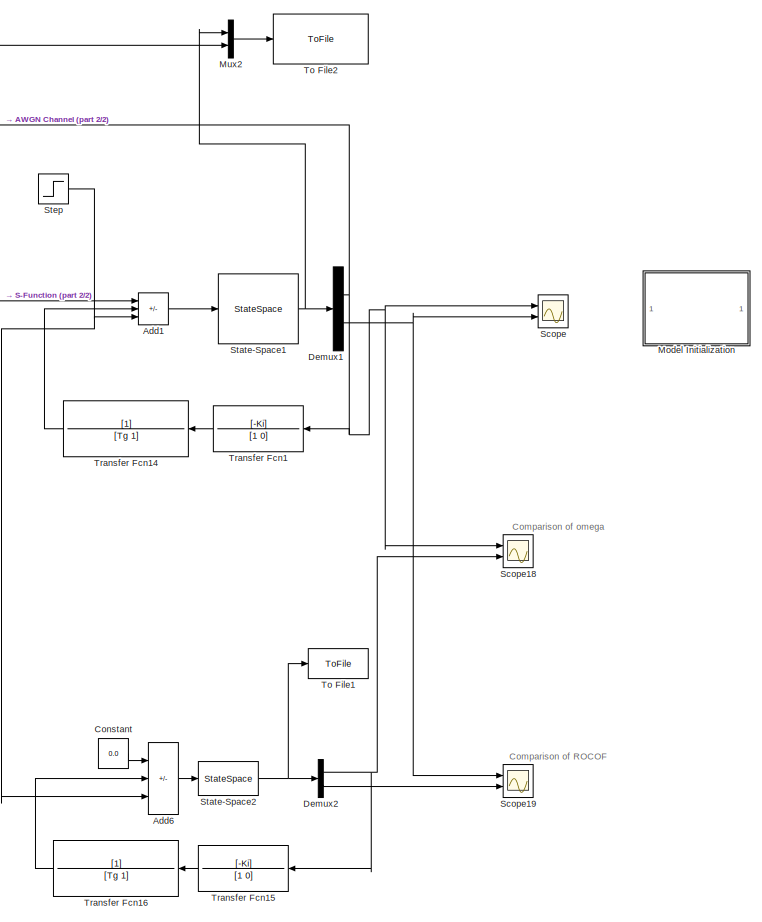
[diagram: root canvas - part 1/2, right side, full height]
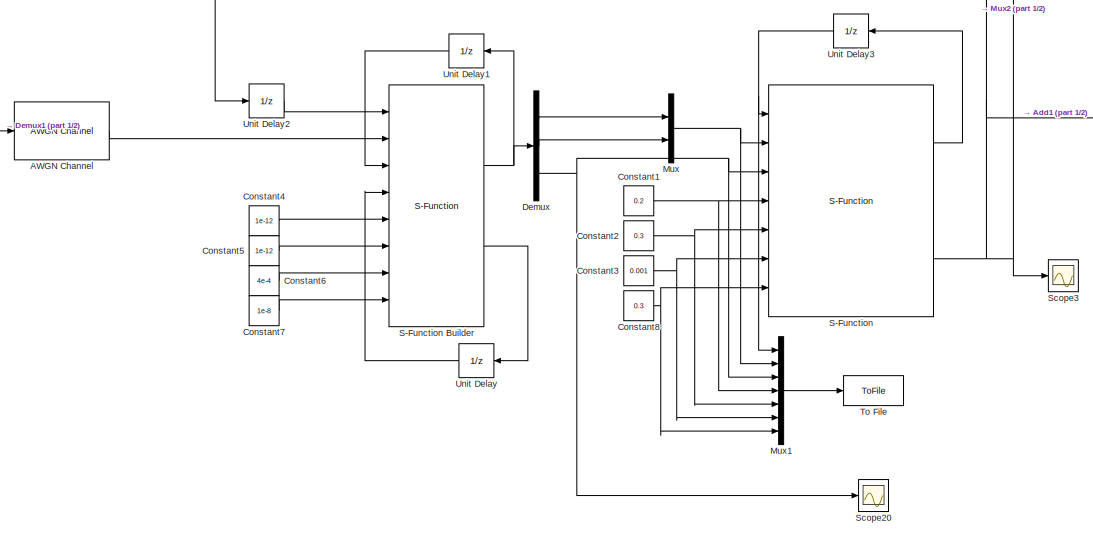
[diagram: root canvas - part 2/2, middle left region]
MODEL slx_940b55816fd9
KIND model
CONFIG AbsTol = auto
CONFIG EnableMultiTasking = off
CONFIG FixedStep = 0.02
CONFIG InitFcn = M = 4; D = 1.5/100; Rp = 0.05; Tg = 0.2; Ki = 1.8;
CONFIG MaxStep = 1e-3
CONFIG MinStep = auto
CONFIG RelTol = 1e-3
CONFIG SampleTimeConstraint = Unconstrained
CONFIG SolverName = VariableStepAuto
CONFIG StartTime = 0.0
CONFIG StopTime = 50
BLOCK [Reference] AWGN Channel  REF=commchan3/AWGN
Channel
  Ports = [1, 1]
  SourceBlock = commchan3/AWGN\nChannel
  SourceProductBaseCode = CM
  SourceType = AWGN Channel
  UserDataPersistent = on
BLOCK [Sum] Add1
  IconShape = rectangular
  Inputs = ++-
  Ports = [3, 1]
BLOCK [Sum] Add6
  IconShape = rectangular
  Inputs = ++-
  Ports = [3, 1]
BLOCK [Constant] Constant
  Value = 0.0
BLOCK [Constant] Constant1
  Value = 0.2
BLOCK [Constant] Constant2
  Value = 0.3
BLOCK [Constant] Constant3
  Value = 0.001
BLOCK [Constant] Constant4
  Value = 1e-12
BLOCK [Constant] Constant5
  Value = 1e-12
BLOCK [Constant] Constant6
  Value = 4e-4
BLOCK [Constant] Constant7
  Value = 1e-8
BLOCK [Constant] Constant8
  Value = 0.3
BLOCK [Demux] Demux
  Outputs = 3
  Ports = [1, 3]
BLOCK [Demux] Demux1
  Outputs = 2
  Ports = [1, 2]
BLOCK [Demux] Demux2
  Outputs = 2
  Ports = [1, 2]
BLOCK [SubSystem] Model Initialization
  CopyFcn = set_param(gcb,'LinkStatus','inactive')
  Ports = []
  RequestExecContextInheritance = off
BLOCK [Mux] Mux
  DisplayOption = bar
  Inputs = 2
  Ports = [2, 1]
BLOCK [Mux] Mux1
  DisplayOption = bar
  Inputs = 7
  Ports = [7, 1]
BLOCK [Mux] Mux2
  DisplayOption = bar
  Inputs = 2
  Ports = [2, 1]
BLOCK [S-Function] S-Function
  EnableBusSupport = off
  FunctionName = MPC_simplified_qpoases_sfun
  Ports = [7, 3]
  SFcnIsStateOwnerBlock = off
  SFunctionDeploymentMode = off
BLOCK [S-Function] S-Function Builder
  CopyFcn = set_param(gcbh,'LinkStatus','none')
  EnableBusSupport = off
  FunctionName = KF_Sfun
  InitFcn = try, set_param(gcb,'FunctionName','KF_Sfun'), end
  OpenFcn = sfunctionwizard(gcbh)
  Ports = [8, 2]
  PreSaveFcn = try, set_param(gcb,'FunctionName','KF_Sfun'), end
  SFcnIsStateOwnerBlock = off
  SFunctionDeploymentMode = off
  SFunctionModules = KF_Sfun_wrapper EKF_Func EKF_Func_Call
BLOCK [Scope] Scope
  Floating = off
  NumInputPorts = 2
  Ports = [2]
  ScopeSpecificationString = Simulink.scopes.TimeScopeBlockCfg('CurrentConfiguration', extmgr.ConfigurationSet(extmgr.Configuration('Core','General UI',true),extmgr.Configuration('Core','Source UI',true),extmgr.Configuration('Sources','WiredSimulink',true,'DataLoggingVariableName','ScopeData2'),extmgr.Configuration('Visuals','Time Domain',true,'SerializedDisplays',{struct('MinYLimReal','-0.07297','MaxYLimReal','0.00984','YLab...<+1730ch>
BLOCK [Scope] Scope18
  Floating = off
  NumInputPorts = 2
  Ports = [2]
  ScopeSpecificationString = Simulink.scopes.TimeScopeBlockCfg('CurrentConfiguration', extmgr.ConfigurationSet(extmgr.Configuration('Core','General UI',true),extmgr.Configuration('Core','Source UI',true),extmgr.Configuration('Sources','WiredSimulink',true,'DataLoggingVariableName','ScopeData12'),extmgr.Configuration('Visuals','Time Domain',true,'SerializedDisplays',{struct('MinYLimReal','-0.04864','MaxYLimReal','0.00541','YLa...<+1715ch>
BLOCK [Scope] Scope19
  Floating = off
  NumInputPorts = 2
  Ports = [2]
  ScopeSpecificationString = Simulink.scopes.TimeScopeBlockCfg('CurrentConfiguration', extmgr.ConfigurationSet(extmgr.Configuration('Core','General UI',true),extmgr.Configuration('Core','Source UI',true),extmgr.Configuration('Sources','WiredSimulink',true,'DataLoggingVariableName','ScopeData13'),extmgr.Configuration('Visuals','Time Domain',true,'SerializedDisplays',{struct('MinYLimReal','-0.11763','MaxYLimReal','0.03534','YLa...<+1714ch>
BLOCK [Scope] Scope20
  Floating = off
  NumInputPorts = 1
  Ports = [1]
  ScopeSpecificationString = Simulink.scopes.TimeScopeBlockCfg('CurrentConfiguration', extmgr.ConfigurationSet(extmgr.Configuration('Core','General UI',true),extmgr.Configuration('Core','Source UI',true),extmgr.Configuration('Sources','WiredSimulink',true,'DataLoggingVariableName','ScopeData14'),extmgr.Configuration('Visuals','Time Domain',true,'SerializedDisplays',{struct('MinYLimReal','-0.12326','MaxYLimReal','0.94391','YLa...<+1367ch>
BLOCK [Scope] Scope3
  Floating = off
  NumInputPorts = 1
  Ports = [1]
  ScopeSpecificationString = Simulink.scopes.TimeScopeBlockCfg('CurrentConfiguration', extmgr.ConfigurationSet(extmgr.Configuration('Core','General UI',true),extmgr.Configuration('Core','Source UI',true),extmgr.Configuration('Sources','WiredSimulink',true,'DataLoggingVariableName','ScopeData1'),extmgr.Configuration('Visuals','Time Domain',true,'SerializedDisplays',{struct('MinYLimReal','-0.20425','MaxYLimReal','0.32843','YLab...<+1415ch>
BLOCK [StateSpace] State-Space1
  A = [0 1;-(D/(M*Tg)+1/(Rp*M*Tg)) -(D/M + 1/Tg)]
  B = [0;1/(M*Tg)]
  C = eye(2)
  D = zeros(2,1)
  InitialCondition = 0
  Ports = [1, 1]
BLOCK [StateSpace] State-Space2
  A = [0 1;-(D/(M*Tg)+1/(Rp*M*Tg)) -(D/M + 1/Tg)]
  B = [0;1/(M*Tg)]
  C = eye(2)
  D = zeros(2,1)
  InitialCondition = 0
  Ports = [1, 1]
BLOCK [Step] Step
  After = 0.75
  SampleTime = 0
  Time = 10
BLOCK [ToFile] To File
  Filename = input_data.mat
  Ports = [1]
  SampleTime = 0.02
BLOCK [ToFile] To File1
  Filename = without_control.mat
  MatrixName = datavar
  Ports = [1]
  SampleTime = 0.02
BLOCK [ToFile] To File2
  Filename = pdip_control.mat
  MatrixName = datavar
  Ports = [1]
  SampleTime = 0.02
BLOCK [TransferFcn] Transfer Fcn1
  Denominator = [1 0]
  NameLocation = top
  Numerator = [-Ki]
BLOCK [TransferFcn] Transfer Fcn14
  Denominator = [Tg 1]
  NameLocation = top
BLOCK [TransferFcn] Transfer Fcn15
  Denominator = [1 0]
  NameLocation = top
  Numerator = [-Ki]
BLOCK [TransferFcn] Transfer Fcn16
  Denominator = [Tg 1]
  NameLocation = top
BLOCK [UnitDelay] Unit Delay
  HasFrameUpgradeWarning = on
  InitialCondition = 1*diag([1, 1, 1])
  SampleTime = 0.02
BLOCK [UnitDelay] Unit Delay1
  HasFrameUpgradeWarning = on
  SampleTime = 0.02
BLOCK [UnitDelay] Unit Delay2
  HasFrameUpgradeWarning = on
  SampleTime = 0.02
BLOCK [UnitDelay] Unit Delay3
  HasFrameUpgradeWarning = on
  SampleTime = 0.02
ANNOTATION (root): Comparison of ROCOF
ANNOTATION (root): Comparison of omega
LINE AWGN Channel:1 -> S-Function Builder:2
LINE Add1:1 -> State-Space1:1
LINE Add6:1 -> State-Space2:1
NET Constant1:1 -> Mux1:4, S-Function:4
NET Constant2:1 -> Mux1:5, S-Function:5
NET Constant3:1 -> Mux1:6, S-Function:6
LINE Constant4:1 -> S-Function Builder:5
LINE Constant5:1 -> S-Function Builder:6
LINE Constant6:1 -> S-Function Builder:7
LINE Constant7:1 -> S-Function Builder:8
NET Constant8:1 -> Mux1:7, S-Function:7
LINE Constant:1 -> Add6:1
NET Demux1:1 -> AWGN Channel:1, Scope18:1, Scope:1, Transfer Fcn1:1
NET Demux1:2 -> Scope19:1, Scope:2
NET Demux2:1 -> Scope18:2, Transfer Fcn15:1
LINE Demux2:2 -> Scope19:2
LINE Demux:1 -> Mux:1
LINE Demux:2 -> Mux:2
NET Demux:3 -> Mux1:3, S-Function:3, Scope20:1
LINE Mux1:1 -> To File:1
LINE Mux2:1 -> To File2:1
NET Mux:1 -> Mux1:2, S-Function:2
NET S-Function Builder:1 -> Demux:1, Unit Delay1:1
LINE S-Function Builder:2 -> Unit Delay:1
LINE S-Function:1 -> Unit Delay3:1
NET S-Function:3 -> Add1:1, Mux2:2, Scope3:1, Unit Delay2:1
NET State-Space1:1 -> Demux1:1, Mux2:1
NET State-Space2:1 -> Demux2:1, To File1:1
NET Step:1 -> Add1:3, Add6:3
LINE Transfer Fcn14:1 -> Add1:2
LINE Transfer Fcn15:1 -> Transfer Fcn16:1
LINE Transfer Fcn16:1 -> Add6:2
LINE Transfer Fcn1:1 -> Transfer Fcn14:1
LINE Unit Delay1:1 -> S-Function Builder:3
LINE Unit Delay2:1 -> S-Function Builder:1
NET Unit Delay3:1 -> Mux1:1, S-Function:1
LINE Unit Delay:1 -> S-Function Builder:4
note: NET lines group one-source signal fan-out (src -> all destinations, sorted); 1:1 wires keep LINE
